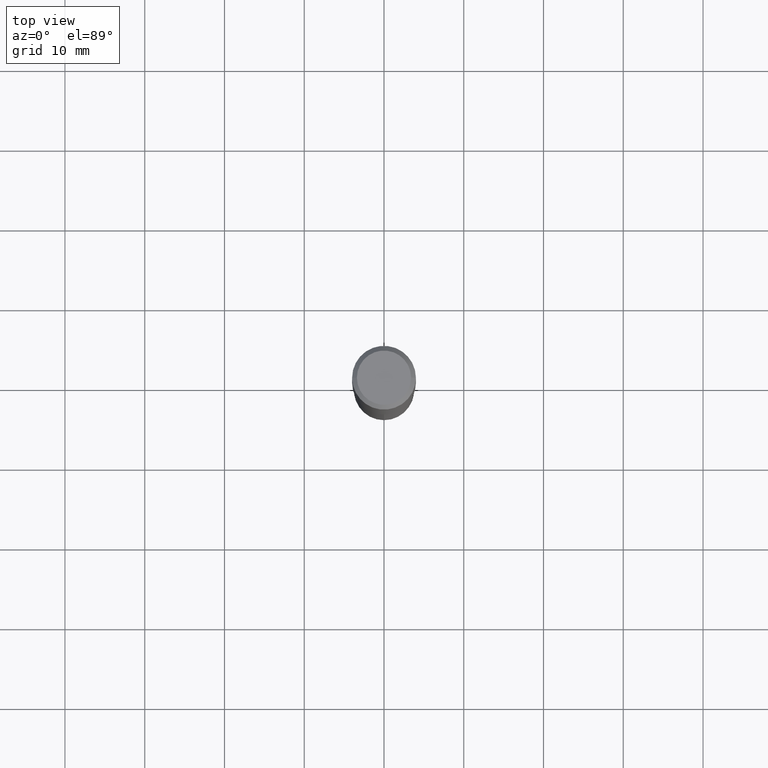
[diagram: clean part render]
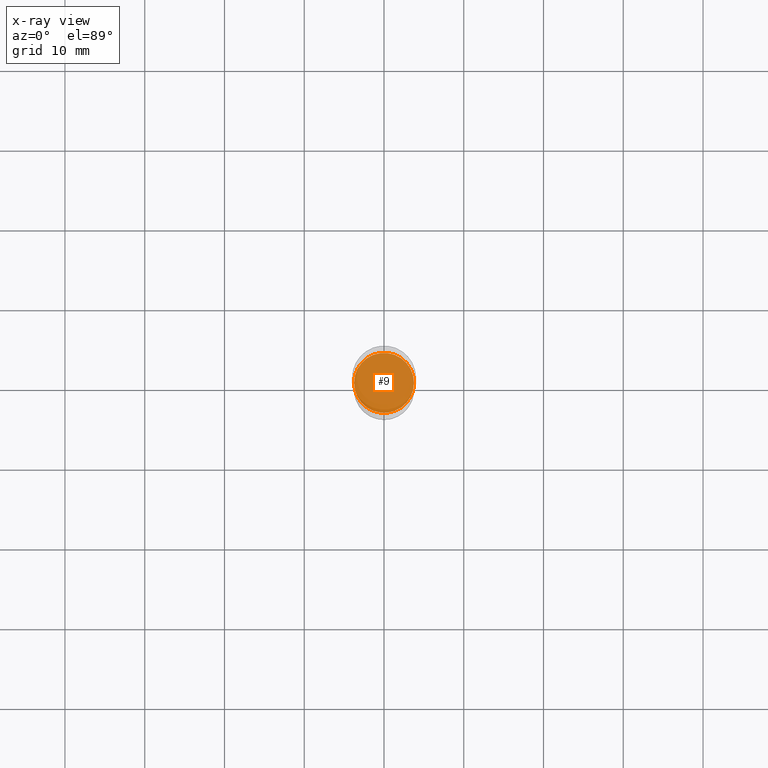
[diagram: x-ray — body ghosted, one internal face saturated and labeled with its STEP entity id]
A machine part, top view, then the same camera in x-ray: the body is ghosted and one INTERNAL B-rep face — a face not visible from any outside direction — is saturated and labeled: STEP entity #9.
In plain terms, the highlighted planar face has unit normal (-0, 0, 1).
Its self-contained STEP definition (entity closure, byte-faithful):
#9 = ADVANCED_FACE ( 'NONE', ( #11 ), #340, .F. ) ;
#11 = FACE_OUTER_BOUND ( 'NONE', #373, .T. ) ;
#14 = CARTESIAN_POINT ( 'NONE',  ( 1.729969723805020089E-29, -7.987705962176350998E-15, -1.496400000000000396 ) ) ;
#51 = CARTESIAN_POINT ( 'NONE',  ( 3.659399521575439863E-29, -5.224652675444884140E-15, -1.496400000000000396 ) ) ;
#81 = CARTESIAN_POINT ( 'NONE',  ( -0.1479499999999999982, -4.170755470713704530E-15, -1.496400000000000396 ) ) ;
#92 = DIRECTION ( 'NONE',  ( 1.000000000000000000, -6.982962677686265922E-15, 4.876176775795935793E-29 ) ) ;
#118 = DIRECTION ( 'NONE',  ( 1.000000000000000000, -6.982962677686265133E-15, 0.000000000000000000 ) ) ;
#119 = DIRECTION ( 'NONE',  ( -2.438088387897960049E-29, 3.491481338843145188E-15, 1.000000000000000000 ) ) ;
#129 = CIRCLE ( 'NONE', #425, 0.1479499999999999982 ) ;
#162 = CARTESIAN_POINT ( 'NONE',  ( 0.1479499999999999982, -6.257782003608567028E-15, -1.496400000000000396 ) ) ;
#173 = ORIENTED_EDGE ( 'NONE', *, *, #249, .F. ) ;
#201 = ORIENTED_EDGE ( 'NONE', *, *, #384, .F. ) ;
#244 = VERTEX_POINT ( 'NONE', #162 ) ;
#249 = EDGE_CURVE ( 'NONE', #250, #244, #434, .T. ) ;
#250 = VERTEX_POINT ( 'NONE', #81 ) ;
#269 = AXIS2_PLACEMENT_3D ( 'NONE', #14, #119, #92 ) ;
#340 = PLANE ( 'NONE',  #269 ) ;
#341 = DIRECTION ( 'NONE',  ( 1.000000000000000000, -6.982962677686265133E-15, 0.000000000000000000 ) ) ;
#342 = CARTESIAN_POINT ( 'NONE',  ( 3.659399521575439863E-29, -5.224652675444884140E-15, -1.496400000000000396 ) ) ;
#373 = EDGE_LOOP ( 'NONE', ( #201, #173 ) ) ;
#378 = AXIS2_PLACEMENT_3D ( 'NONE', #51, #427, #118 ) ;
#384 = EDGE_CURVE ( 'NONE', #244, #250, #129, .T. ) ;
#425 = AXIS2_PLACEMENT_3D ( 'NONE', #342, #433, #341 ) ;
#427 = DIRECTION ( 'NONE',  ( -2.445468806185136597E-29, 3.491481338843145583E-15, 1.000000000000000000 ) ) ;
#433 = DIRECTION ( 'NONE',  ( -2.445468806185136597E-29, 3.491481338843145583E-15, 1.000000000000000000 ) ) ;
#434 = CIRCLE ( 'NONE', #378, 0.1479499999999999982 ) ;